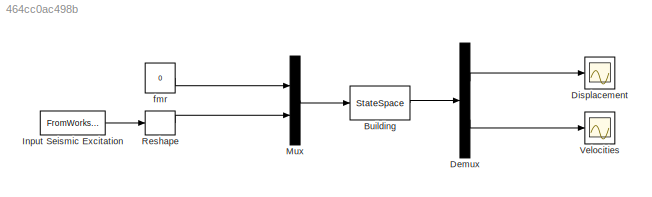
MODEL slx_464cc0ac498b
KIND model
CONFIG AbsTol = auto
CONFIG EnableMultiTasking = off
CONFIG FixedStep = auto
CONFIG MaxStep = auto
CONFIG MinStep = auto
CONFIG RelTol = 1e-3
CONFIG SampleTimeConstraint = Unconstrained
CONFIG SolverName = VariableStepAuto
CONFIG StartTime = 0.0
CONFIG StopTime = 10.0
BLOCK [StateSpace] Building
  A = A
  B = Bce
  C = C
  ContinuousStateAttributes = "Building"
  D = Dcf
  InitialCondition = 0
BLOCK [Demux] Demux
  Outputs = 2
BLOCK [Scope] Displacement
  Floating = off
  NumInputPorts = 1
  ScopeSpecificationString = Simulink.scopes.TimeScopeBlockCfg('CurrentConfiguration', extmgr.ConfigurationSet(extmgr.Configuration('Core','General UI',true),extmgr.Configuration('Core','Source UI',true),extmgr.Configuration('Sources','WiredSimulink',true,'DataLoggingVariableName','ScopeData1'),extmgr.Configuration('Visuals','Time Domain',true,'SerializedDisplays',{struct('MinYLimReal','-0.08329','MaxYLimReal','0.08371','YLab...<+2881ch>
BLOCK [FromWorkspace] Input Seismic Excitation
  OutputAfterFinalValue = Setting to zero
  VariableName = input_excite
BLOCK [Mux] Mux
  DisplayOption = bar
  Inputs = 2
BLOCK [Reshape] Reshape
  OutputDimensionality = Customize
BLOCK [Scope] Velocities
  Floating = off
  NumInputPorts = 1
  ScopeSpecificationString = Simulink.scopes.TimeScopeBlockCfg('CurrentConfiguration', extmgr.ConfigurationSet(extmgr.Configuration('Core','General UI',true),extmgr.Configuration('Core','Source UI',true),extmgr.Configuration('Sources','WiredSimulink',true,'DataLoggingVariableName','ScopeData1'),extmgr.Configuration('Visuals','Time Domain',true,'SerializedDisplays',{struct('MinYLimReal','-2.64447','MaxYLimReal','2.02952','YLab...<+1567ch>
BLOCK [Constant] fmr
  SampleTime = 0.002
  Value = 0
LINE Building:1 -> Demux:1
LINE Demux:1 -> Displacement:1
LINE Demux:2 -> Velocities:1
LINE Input Seismic Excitation:1 -> Reshape:1
LINE Mux:1 -> Building:1
LINE Reshape:1 -> Mux:2
LINE fmr:1 -> Mux:1
